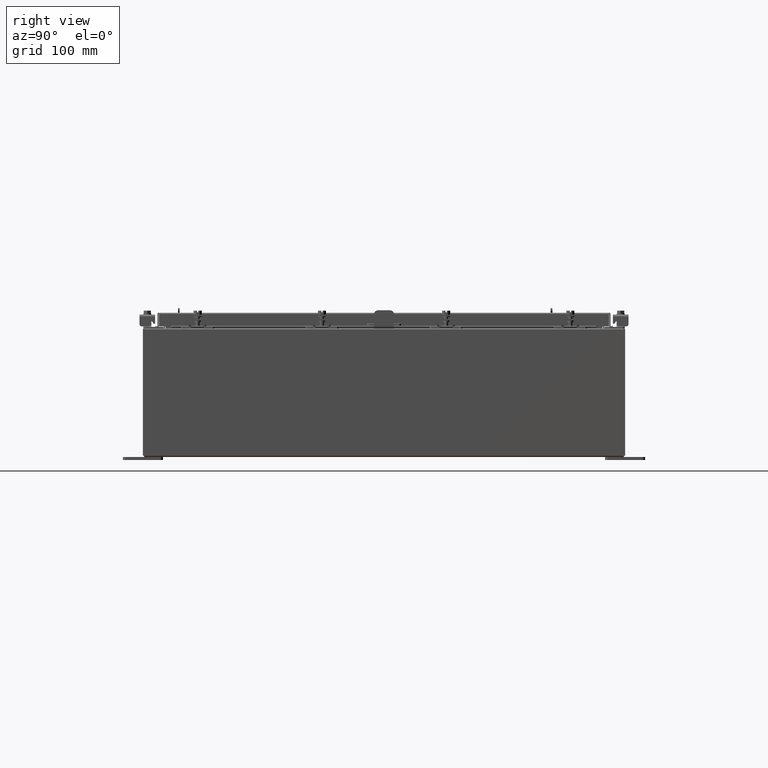
[diagram: clean part render]
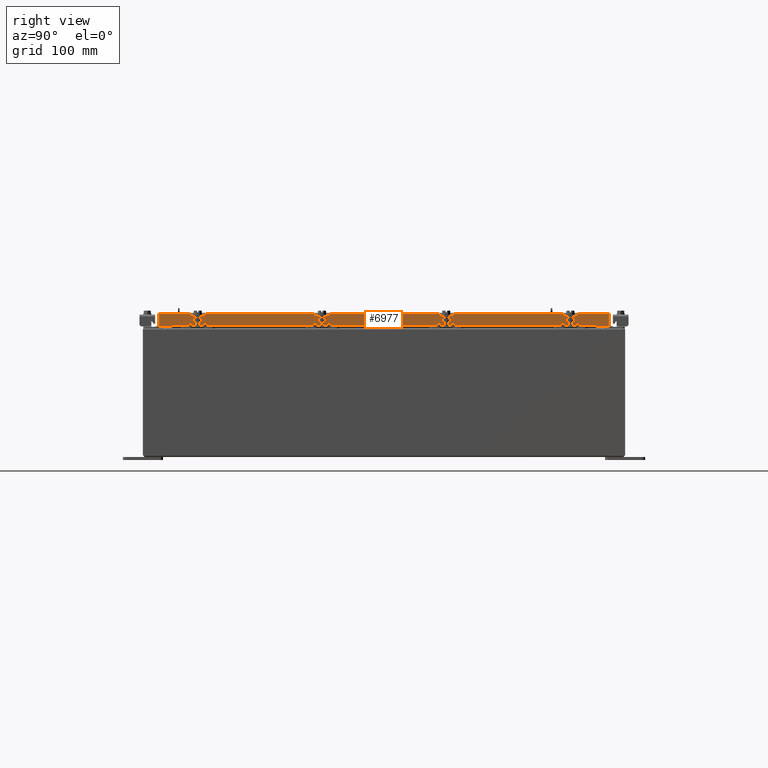
[diagram: same view with one face highlighted and labeled with its STEP entity id]
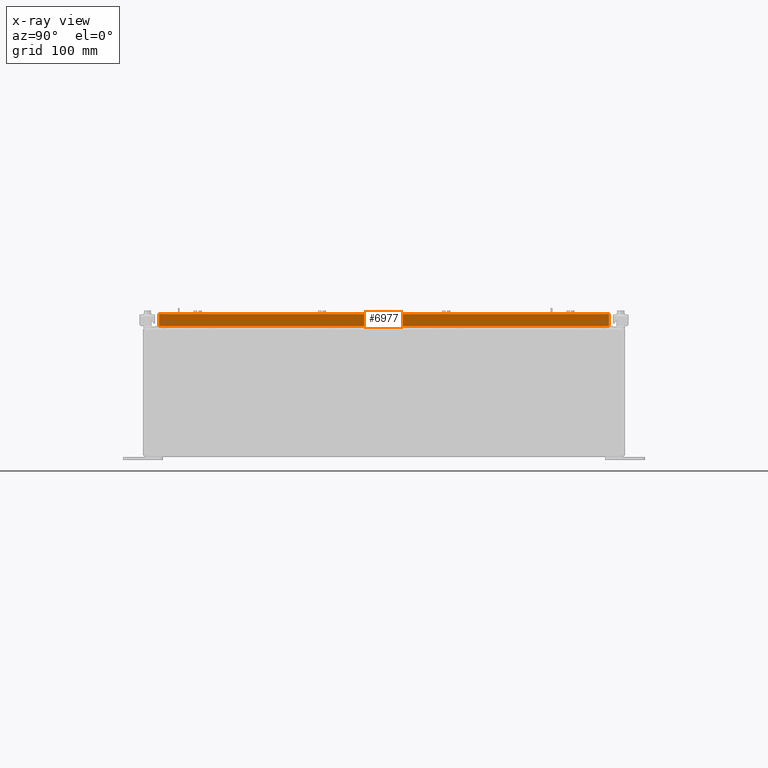
[diagram: x-ray of the same camera — body ghosted, the highlighted face saturated]
A machine part, right view. The second image highlights one B-rep face of the part: STEP entity #6977.
The next image is the same camera in x-ray: the body ghosted, the highlighted face saturated — about 0% of this face is hidden behind the body in this view.
In plain terms, the highlighted planar face has unit normal (1, 0, 0).
Its self-contained STEP definition (entity closure, byte-faithful):
#479 = ORIENTED_EDGE ( 'NONE', *, *, #23138, .F. ) ;
#605 = CARTESIAN_POINT ( 'NONE',  ( 14.09400000000000100, -14.09399999999999900, -0.8499999999999999800 ) ) ;
#959 = CARTESIAN_POINT ( 'NONE',  ( 14.09399999999999200, 13.25515786437627200, -0.8500000000000010900 ) ) ;
#1475 = CARTESIAN_POINT ( 'NONE',  ( 14.09399999999999200, 13.25515786437627100, -0.8500000000000010900 ) ) ;
#1575 = DIRECTION ( 'NONE',  ( -2.818880942772360100E-015, -6.982962677686265900E-015, 1.000000000000000000 ) ) ;
#2691 = EDGE_CURVE ( 'NONE', #3331, #7889, #23110, .T. ) ;
#2937 = VECTOR ( 'NONE', #17414, 39.37007874015748100 ) ;
#3331 = VERTEX_POINT ( 'NONE', #1475 ) ;
#3531 = LINE ( 'NONE', #605, #2937 ) ;
#4215 = VERTEX_POINT ( 'NONE', #15071 ) ;
#4332 = VERTEX_POINT ( 'NONE', #13531 ) ;
#5052 = FACE_OUTER_BOUND ( 'NONE', #7897, .T. ) ;
#5449 = VERTEX_POINT ( 'NONE', #5907 ) ;
#5624 = DIRECTION ( 'NONE',  ( -2.818880942772360100E-015, -6.982962677686265900E-015, 1.000000000000000000 ) ) ;
#5907 = CARTESIAN_POINT ( 'NONE',  ( 14.09400000000000100, 14.00515786437627200, -0.8499999999999999800 ) ) ;
#6164 = LINE ( 'NONE', #14702, #19895 ) ;
#6977 = ADVANCED_FACE ( 'NONE', ( #5052 ), #7727, .T. ) ;
#7727 = PLANE ( 'NONE',  #12622 ) ;
#7889 = VERTEX_POINT ( 'NONE', #12056 ) ;
#7897 = EDGE_LOOP ( 'NONE', ( #479, #21132, #13566, #16332, #18304, #13950 ) ) ;
#8206 = VECTOR ( 'NONE', #14580, 39.37007874015748100 ) ;
#8429 = VECTOR ( 'NONE', #5624, 39.37007874015748100 ) ;
#8967 = VERTEX_POINT ( 'NONE', #13659 ) ;
#8970 = EDGE_CURVE ( 'NONE', #5449, #3331, #3531, .T. ) ;
#10273 = EDGE_CURVE ( 'NONE', #7889, #8967, #15422, .T. ) ;
#11440 = DIRECTION ( 'NONE',  ( 2.818880942772360100E-015, 0.0000000000000000000, -1.000000000000000000 ) ) ;
#12056 = CARTESIAN_POINT ( 'NONE',  ( 14.09399999999999200, -13.25515786437626400, -0.8500000000000010900 ) ) ;
#12622 = AXIS2_PLACEMENT_3D ( 'NONE', #20807, #22649, #11440 ) ;
#12761 = CARTESIAN_POINT ( 'NONE',  ( 14.09399999999999900, -14.00515786437626900, -0.07470000000000015500 ) ) ;
#13531 = CARTESIAN_POINT ( 'NONE',  ( 14.09399999999999900, -14.00515786437626900, -0.08770000000000026400 ) ) ;
#13566 = ORIENTED_EDGE ( 'NONE', *, *, #2691, .F. ) ;
#13648 = EDGE_CURVE ( 'NONE', #4215, #4332, #6164, .T. ) ;
#13659 = CARTESIAN_POINT ( 'NONE',  ( 14.09400000000000100, -14.00515786437626400, -0.8499999999999999800 ) ) ;
#13950 = ORIENTED_EDGE ( 'NONE', *, *, #13648, .T. ) ;
#14580 = DIRECTION ( 'NONE',  ( 0.0000000000000000000, -1.000000000000000000, 0.0000000000000000000 ) ) ;
#14702 = CARTESIAN_POINT ( 'NONE',  ( 14.09399999999999900, 0.0000000000000000000, -0.08770000000000026400 ) ) ;
#15071 = CARTESIAN_POINT ( 'NONE',  ( 14.09399999999999900, 14.00515786437626500, -0.08770000000000026400 ) ) ;
#15422 = LINE ( 'NONE', #23001, #23623 ) ;
#15878 = EDGE_CURVE ( 'NONE', #5449, #4215, #18386, .T. ) ;
#16332 = ORIENTED_EDGE ( 'NONE', *, *, #8970, .F. ) ;
#16578 = DIRECTION ( 'NONE',  ( 0.0000000000000000000, -1.000000000000000000, 0.0000000000000000000 ) ) ;
#17414 = DIRECTION ( 'NONE',  ( 0.0000000000000000000, -1.000000000000000000, 0.0000000000000000000 ) ) ;
#18304 = ORIENTED_EDGE ( 'NONE', *, *, #15878, .T. ) ;
#18386 = LINE ( 'NONE', #20578, #8429 ) ;
#19895 = VECTOR ( 'NONE', #16578, 39.37007874015748100 ) ;
#20187 = LINE ( 'NONE', #12761, #21359 ) ;
#20578 = CARTESIAN_POINT ( 'NONE',  ( 14.09399999999999900, 14.00515786437626900, 1.376851388806788600E-013 ) ) ;
#20807 = CARTESIAN_POINT ( 'NONE',  ( 14.09399999999999900, 0.0000000000000000000, 4.043135030623109600E-014 ) ) ;
#21132 = ORIENTED_EDGE ( 'NONE', *, *, #10273, .F. ) ;
#21146 = DIRECTION ( 'NONE',  ( 0.0000000000000000000, -1.000000000000000000, 0.0000000000000000000 ) ) ;
#21359 = VECTOR ( 'NONE', #1575, 39.37007874015748100 ) ;
#22649 = DIRECTION ( 'NONE',  ( 1.000000000000000000, 0.0000000000000000000, 2.818880942772360100E-015 ) ) ;
#23001 = CARTESIAN_POINT ( 'NONE',  ( 14.09400000000000100, -14.09399999999999900, -0.8499999999999999800 ) ) ;
#23110 = LINE ( 'NONE', #959, #8206 ) ;
#23138 = EDGE_CURVE ( 'NONE', #8967, #4332, #20187, .T. ) ;
#23623 = VECTOR ( 'NONE', #21146, 39.37007874015748100 ) ;